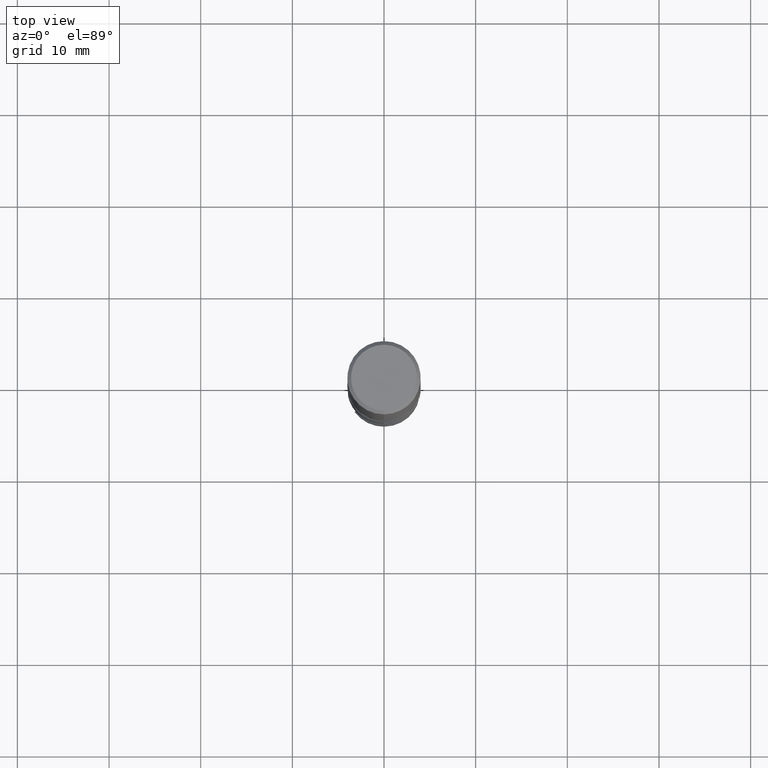
[diagram: clean part render]
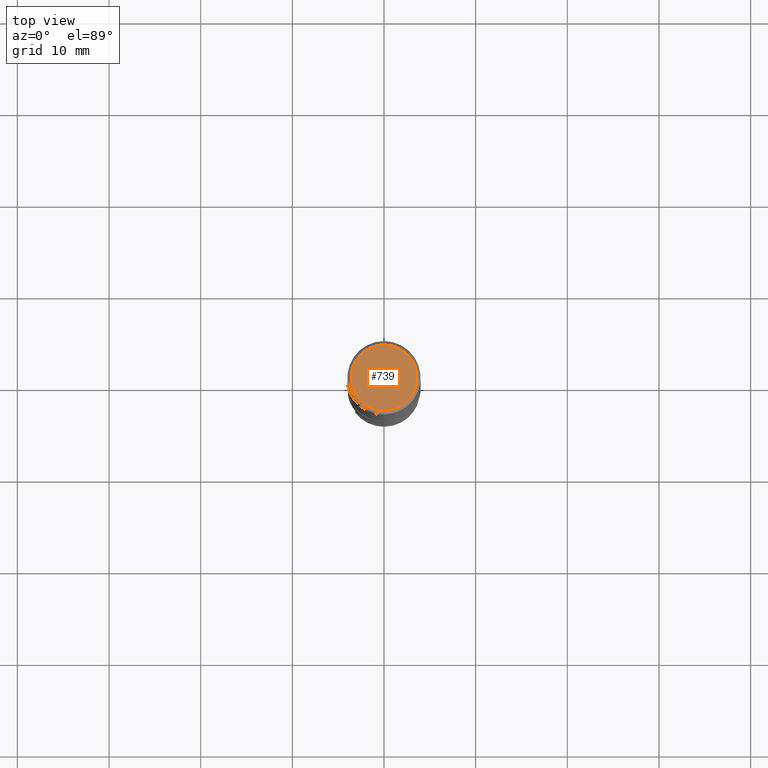
[diagram: same view with one face highlighted and labeled with its STEP entity id]
A machine part, top view. The second image highlights one B-rep face of the part: STEP entity #739.
In plain terms, the highlighted planar face has unit normal (-0, 0, 1).
Its self-contained STEP definition (entity closure, byte-faithful):
#321=EDGE_CURVE('',#349,#365,#818,.T.);
#349=VERTEX_POINT('',#846);
#365=VERTEX_POINT('',#862);
#397=EDGE_CURVE('',#365,#349,#899,.T.);
#739=ADVANCED_FACE('',(#1273),#1274,.T.);
#818=CIRCLE('',#2155,3.6);
#846=CARTESIAN_POINT('',(0.0,3.6,0.0));
#862=CARTESIAN_POINT('',(4.40858287376056E-016,-3.6,0.0));
#899=CIRCLE('',#2909,3.6);
#1273=FACE_OUTER_BOUND('',#7674,.T.);
#1274=PLANE('',#7675);
#2155=AXIS2_PLACEMENT_3D('',#7733,#7734,#7735);
#2909=AXIS2_PLACEMENT_3D('',#7793,#7794,#7795);
#7674=EDGE_LOOP('',(#8180,#8181));
#7675=AXIS2_PLACEMENT_3D('',#8182,#8183,#8184);
#7733=CARTESIAN_POINT('',(0.0,0.0,0.0));
#7734=DIRECTION('',(0.0,0.0,-1.0));
#7735=DIRECTION('',(0.0,1.0,0.0));
#7793=CARTESIAN_POINT('',(0.0,0.0,0.0));
#7794=DIRECTION('',(0.0,0.0,-1.0));
#7795=DIRECTION('',(0.0,1.0,0.0));
#8180=ORIENTED_EDGE('',*,*,#321,.F.);
#8181=ORIENTED_EDGE('',*,*,#397,.F.);
#8182=CARTESIAN_POINT('',(0.0,1.8,0.0));
#8183=DIRECTION('',(-0.0,0.0,1.0));
#8184=DIRECTION('',(0.0,-1.0,0.0));